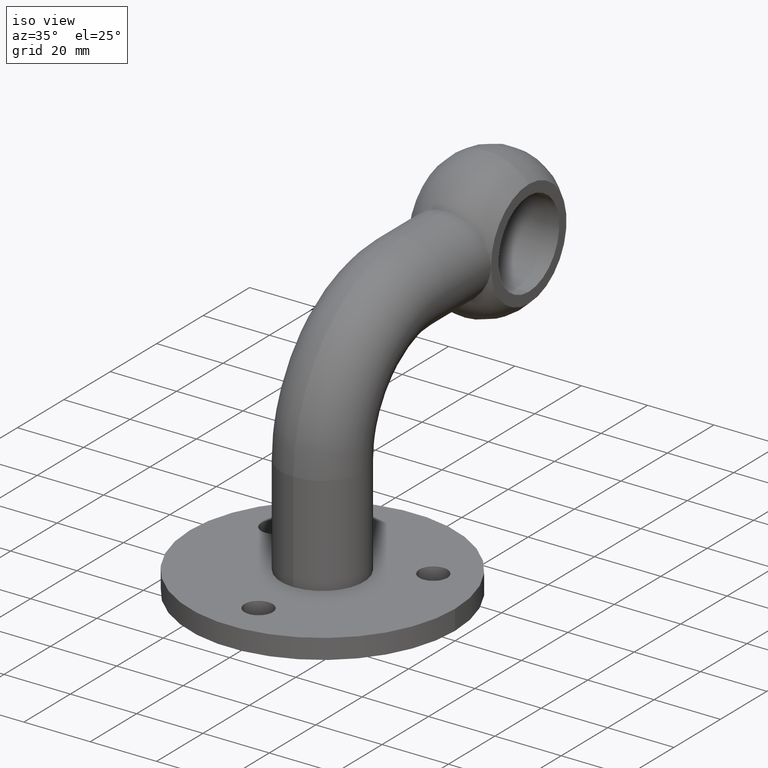
[diagram: clean part render]
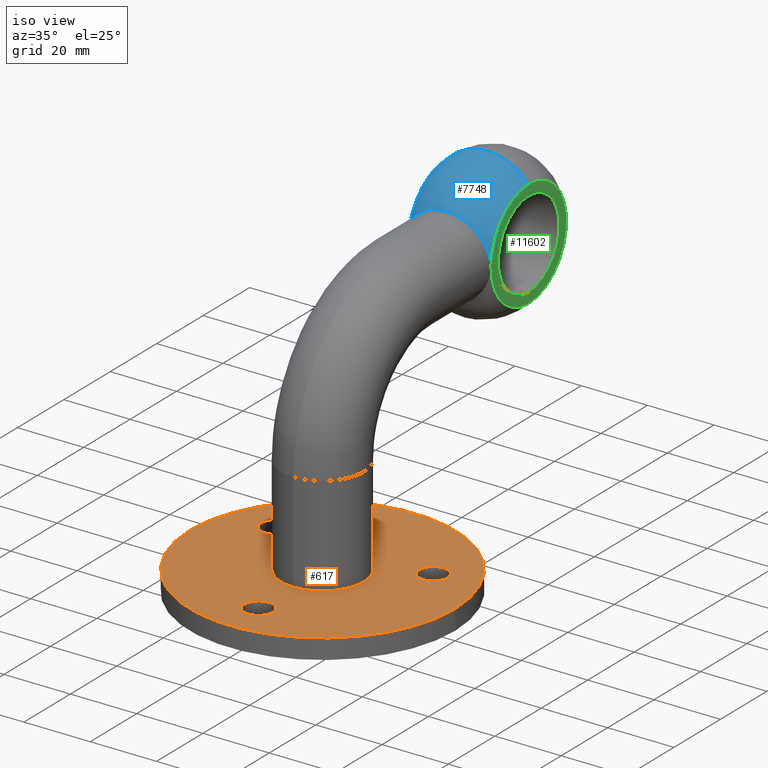
[diagram: same view with three faces highlighted in distinct colors, each labeled with its STEP entity id]
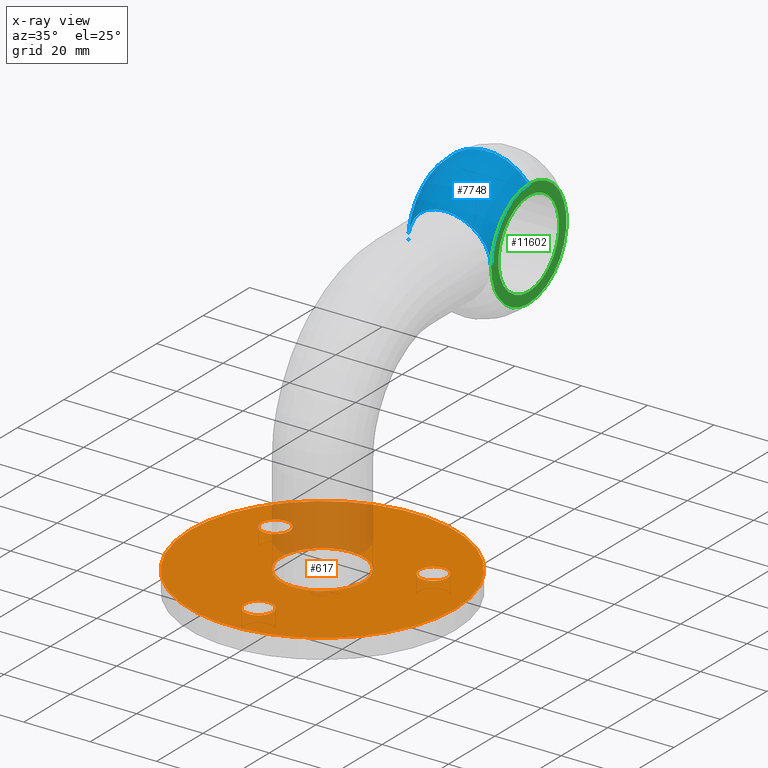
[diagram: x-ray of the same camera — body ghosted, the three highlighted faces saturated]
A machine part, iso view with three faces highlighted in distinct colors.
The next image is the same camera in x-ray (body ghosted, the three faces saturated) — at least one of them is partly hidden behind the body in this view.
Their STEP definitions:

[orange] entity #617 — the highlighted planar face has unit normal (0, 0, 1).
#9 = DIRECTION ( 'NONE',  ( 1.000000000000000000, 0.000000000000000000, 0.000000000000000000 ) ) ;
#69 = CARTESIAN_POINT ( 'NONE',  ( 19.56569860407208239, 13.74999999999994493, 6.000000000000000000 ) ) ;
#93 = DIRECTION ( 'NONE',  ( 1.000000000000000000, 0.000000000000000000, 0.000000000000000000 ) ) ;
#162 = VERTEX_POINT ( 'NONE', #11481 ) ;
#290 = AXIS2_PLACEMENT_3D ( 'NONE', #3651, #3611, #5519 ) ;
#351 = CIRCLE ( 'NONE', #8172, 4.250000000000003553 ) ;
#456 = CARTESIAN_POINT ( 'NONE',  ( 0.000000000000000000, -12.50000000000000178, 6.000000000000000000 ) ) ;
#467 = DIRECTION ( 'NONE',  ( 1.000000000000000000, 0.000000000000000000, 0.000000000000000000 ) ) ;
#617 = ADVANCED_FACE ( 'NONE', ( #10043, #8848, #2125, #5955, #4771 ), #4750, .T. ) ;
#625 = CARTESIAN_POINT ( 'NONE',  ( 0.000000000000000000, -1.299550600033665897E-15, 6.000000000000000000 ) ) ;
#748 = ORIENTED_EDGE ( 'NONE', *, *, #9659, .T. ) ;
#886 = AXIS2_PLACEMENT_3D ( 'NONE', #9925, #1451, #8003 ) ;
#1314 = CIRCLE ( 'NONE', #7053, 4.250000000000000000 ) ;
#1451 = DIRECTION ( 'NONE',  ( -0.000000000000000000, -0.000000000000000000, -1.000000000000000000 ) ) ;
#1765 = VERTEX_POINT ( 'NONE', #2072 ) ;
#2072 = CARTESIAN_POINT ( 'NONE',  ( 40.00000000000000000, 4.898587196589413026E-15, 6.000000000000000000 ) ) ;
#2125 = FACE_OUTER_BOUND ( 'NONE', #9322, .T. ) ;
#2311 = DIRECTION ( 'NONE',  ( -0.000000000000000000, -0.000000000000000000, -1.000000000000000000 ) ) ;
#2358 = CARTESIAN_POINT ( 'NONE',  ( -28.06569860407200068, 13.75000000000010836, 6.000000000000000000 ) ) ;
#2379 = DIRECTION ( 'NONE',  ( 0.000000000000000000, 0.000000000000000000, 1.000000000000000000 ) ) ;
#2402 = EDGE_CURVE ( 'NONE', #4504, #11885, #351, .T. ) ;
#2668 = AXIS2_PLACEMENT_3D ( 'NONE', #10365, #10324, #4799 ) ;
#3203 = EDGE_CURVE ( 'NONE', #10888, #5571, #11535, .T. ) ;
#3326 = CIRCLE ( 'NONE', #4764, 4.250000000000003553 ) ;
#3480 = EDGE_LOOP ( 'NONE', ( #5707, #3834 ) ) ;
#3552 = AXIS2_PLACEMENT_3D ( 'NONE', #625, #2311, #9848 ) ;
#3611 = DIRECTION ( 'NONE',  ( 0.000000000000000000, 0.000000000000000000, 1.000000000000000000 ) ) ;
#3651 = CARTESIAN_POINT ( 'NONE',  ( 23.81569860407208949, 13.74999999999994493, 6.000000000000000000 ) ) ;
#3834 = ORIENTED_EDGE ( 'NONE', *, *, #9822, .F. ) ;
#4235 = CARTESIAN_POINT ( 'NONE',  ( 0.000000000000000000, 0.000000000000000000, 6.000000000000000000 ) ) ;
#4360 = DIRECTION ( 'NONE',  ( 0.000000000000000000, 0.000000000000000000, 1.000000000000000000 ) ) ;
#4441 = CIRCLE ( 'NONE', #6182, 40.00000000000000000 ) ;
#4504 = VERTEX_POINT ( 'NONE', #8844 ) ;
#4586 = EDGE_CURVE ( 'NONE', #6002, #4860, #7852, .T. ) ;
#4750 = PLANE ( 'NONE',  #2668 ) ;
#4764 = AXIS2_PLACEMENT_3D ( 'NONE', #8441, #10384, #9 ) ;
#4771 = FACE_BOUND ( 'NONE', #8735, .T. ) ;
#4794 = ORIENTED_EDGE ( 'NONE', *, *, #9921, .F. ) ;
#4799 = DIRECTION ( 'NONE',  ( 1.000000000000000000, 0.000000000000000000, -0.000000000000000000 ) ) ;
#4860 = VERTEX_POINT ( 'NONE', #9841 ) ;
#5161 = DIRECTION ( 'NONE',  ( 1.000000000000000000, 0.000000000000000000, 0.000000000000000000 ) ) ;
#5238 = DIRECTION ( 'NONE',  ( 1.000000000000000000, 0.000000000000000000, 0.000000000000000000 ) ) ;
#5336 = ORIENTED_EDGE ( 'NONE', *, *, #2402, .F. ) ;
#5409 = EDGE_CURVE ( 'NONE', #1765, #162, #8549, .T. ) ;
#5422 = EDGE_CURVE ( 'NONE', #7838, #8622, #6510, .T. ) ;
#5519 = DIRECTION ( 'NONE',  ( 1.000000000000000000, 0.000000000000000000, 0.000000000000000000 ) ) ;
#5571 = VERTEX_POINT ( 'NONE', #8141 ) ;
#5707 = ORIENTED_EDGE ( 'NONE', *, *, #4586, .F. ) ;
#5758 = CARTESIAN_POINT ( 'NONE',  ( 0.000000000000000000, -27.50000000000000000, 6.000000000000000000 ) ) ;
#5955 = FACE_BOUND ( 'NONE', #3480, .T. ) ;
#6002 = VERTEX_POINT ( 'NONE', #7657 ) ;
#6182 = AXIS2_PLACEMENT_3D ( 'NONE', #4235, #7205, #5161 ) ;
#6205 = CIRCLE ( 'NONE', #7681, 4.250000000000007105 ) ;
#6510 = CIRCLE ( 'NONE', #886, 12.50000000000000000 ) ;
#6745 = CARTESIAN_POINT ( 'NONE',  ( 1.530808498934191916E-15, 12.50000000000000000, 6.000000000000000000 ) ) ;
#7053 = AXIS2_PLACEMENT_3D ( 'NONE', #5758, #9597, #93 ) ;
#7205 = DIRECTION ( 'NONE',  ( 0.000000000000000000, 0.000000000000000000, 1.000000000000000000 ) ) ;
#7580 = EDGE_CURVE ( 'NONE', #11885, #4504, #3326, .T. ) ;
#7657 = CARTESIAN_POINT ( 'NONE',  ( -4.250000000000000000, -27.50000000000000000, 6.000000000000000000 ) ) ;
#7681 = AXIS2_PLACEMENT_3D ( 'NONE', #10629, #8725, #7846 ) ;
#7813 = CARTESIAN_POINT ( 'NONE',  ( 0.000000000000000000, 0.000000000000000000, 6.000000000000000000 ) ) ;
#7838 = VERTEX_POINT ( 'NONE', #6745 ) ;
#7846 = DIRECTION ( 'NONE',  ( 1.000000000000000000, 0.000000000000000000, 0.000000000000000000 ) ) ;
#7852 = CIRCLE ( 'NONE', #11878, 4.250000000000000000 ) ;
#7876 = ORIENTED_EDGE ( 'NONE', *, *, #3203, .F. ) ;
#8003 = DIRECTION ( 'NONE',  ( 1.000000000000000000, 0.000000000000000000, 0.000000000000000000 ) ) ;
#8015 = EDGE_CURVE ( 'NONE', #8622, #7838, #11772, .T. ) ;
#8141 = CARTESIAN_POINT ( 'NONE',  ( 28.06569860407209660, 13.74999999999994493, 6.000000000000000000 ) ) ;
#8163 = EDGE_LOOP ( 'NONE', ( #9881, #5336 ) ) ;
#8172 = AXIS2_PLACEMENT_3D ( 'NONE', #11820, #2379, #467 ) ;
#8290 = ORIENTED_EDGE ( 'NONE', *, *, #5422, .T. ) ;
#8441 = CARTESIAN_POINT ( 'NONE',  ( -23.81569860407199712, 13.75000000000010836, 6.000000000000000000 ) ) ;
#8549 = CIRCLE ( 'NONE', #10828, 40.00000000000000000 ) ;
#8622 = VERTEX_POINT ( 'NONE', #456 ) ;
#8725 = DIRECTION ( 'NONE',  ( 0.000000000000000000, 0.000000000000000000, 1.000000000000000000 ) ) ;
#8734 = DIRECTION ( 'NONE',  ( 0.000000000000000000, 0.000000000000000000, 1.000000000000000000 ) ) ;
#8735 = EDGE_LOOP ( 'NONE', ( #7876, #4794 ) ) ;
#8844 = CARTESIAN_POINT ( 'NONE',  ( -19.56569860407199357, 13.75000000000010836, 6.000000000000000000 ) ) ;
#8848 = FACE_BOUND ( 'NONE', #8163, .T. ) ;
#8860 = ORIENTED_EDGE ( 'NONE', *, *, #5409, .T. ) ;
#8897 = ORIENTED_EDGE ( 'NONE', *, *, #8015, .T. ) ;
#9322 = EDGE_LOOP ( 'NONE', ( #748, #8860 ) ) ;
#9597 = DIRECTION ( 'NONE',  ( 0.000000000000000000, 0.000000000000000000, 1.000000000000000000 ) ) ;
#9659 = EDGE_CURVE ( 'NONE', #162, #1765, #4441, .T. ) ;
#9685 = DIRECTION ( 'NONE',  ( 1.000000000000000000, 0.000000000000000000, 0.000000000000000000 ) ) ;
#9822 = EDGE_CURVE ( 'NONE', #4860, #6002, #1314, .T. ) ;
#9841 = CARTESIAN_POINT ( 'NONE',  ( 4.250000000000000000, -27.50000000000000000, 6.000000000000000000 ) ) ;
#9848 = DIRECTION ( 'NONE',  ( 1.000000000000000000, 0.000000000000000000, 0.000000000000000000 ) ) ;
#9881 = ORIENTED_EDGE ( 'NONE', *, *, #7580, .F. ) ;
#9921 = EDGE_CURVE ( 'NONE', #5571, #10888, #6205, .T. ) ;
#9925 = CARTESIAN_POINT ( 'NONE',  ( 0.000000000000000000, -1.299550600033665897E-15, 6.000000000000000000 ) ) ;
#10043 = FACE_BOUND ( 'NONE', #11551, .T. ) ;
#10324 = DIRECTION ( 'NONE',  ( 0.000000000000000000, 0.000000000000000000, 1.000000000000000000 ) ) ;
#10365 = CARTESIAN_POINT ( 'NONE',  ( 0.000000000000000000, 0.000000000000000000, 6.000000000000000000 ) ) ;
#10384 = DIRECTION ( 'NONE',  ( 0.000000000000000000, 0.000000000000000000, 1.000000000000000000 ) ) ;
#10629 = CARTESIAN_POINT ( 'NONE',  ( 23.81569860407208949, 13.74999999999994493, 6.000000000000000000 ) ) ;
#10828 = AXIS2_PLACEMENT_3D ( 'NONE', #7813, #8734, #9685 ) ;
#10888 = VERTEX_POINT ( 'NONE', #69 ) ;
#11481 = CARTESIAN_POINT ( 'NONE',  ( -40.00000000000000000, 0.000000000000000000, 6.000000000000000000 ) ) ;
#11535 = CIRCLE ( 'NONE', #290, 4.250000000000007105 ) ;
#11551 = EDGE_LOOP ( 'NONE', ( #8897, #8290 ) ) ;
#11772 = CIRCLE ( 'NONE', #3552, 12.50000000000000000 ) ;
#11820 = CARTESIAN_POINT ( 'NONE',  ( -23.81569860407199712, 13.75000000000010836, 6.000000000000000000 ) ) ;
#11878 = AXIS2_PLACEMENT_3D ( 'NONE', #11904, #4360, #5238 ) ;
#11885 = VERTEX_POINT ( 'NONE', #2358 ) ;
#11904 = CARTESIAN_POINT ( 'NONE',  ( 0.000000000000000000, -27.50000000000000000, 6.000000000000000000 ) ) ;

[blue] entity #7748 — the highlighted toroidal blend (fillet) surface has major radius 5.5 mm and minor (blend) radius 16.5 mm.
#19 = CARTESIAN_POINT ( 'NONE',  ( -5.569167740036760961, 53.18626817477178292, 82.22128293511637764 ) ) ;
#521 = CARTESIAN_POINT ( 'NONE',  ( 4.038290656633225950, 53.04763798242769468, 82.83692695949136464 ) ) ;
#525 = ORIENTED_EDGE ( 'NONE', *, *, #11025, .T. ) ;
#602 = CARTESIAN_POINT ( 'NONE',  ( 11.69932865221011475, 54.43916014383506052, 75.42063147249605493 ) ) ;
#916 = CARTESIAN_POINT ( 'NONE',  ( -0.4116708854286305064, 52.89613300976832022, 83.49999999999997158 ) ) ;
#960 = CARTESIAN_POINT ( 'NONE',  ( -9.427817443929640717, 53.81262261937213509, 79.24798852226729196 ) ) ;
#1178 = DIRECTION ( 'NONE',  ( -1.000000000000000000, -0.000000000000000000, -0.000000000000000000 ) ) ;
#1426 = CARTESIAN_POINT ( 'NONE',  ( 8.256812862597158187, 53.58038589883630465, 80.39368421424964595 ) ) ;
#1440 = AXIS2_PLACEMENT_3D ( 'NONE', #6814, #1178, #2227 ) ;
#1468 = CARTESIAN_POINT ( 'NONE',  ( 12.07868349203978298, 54.57089833600761608, 74.24435198872095043 ) ) ;
#1536 = VERTEX_POINT ( 'NONE', #7106 ) ;
#1727 = B_SPLINE_CURVE_WITH_KNOTS ( 'NONE', 3,
 ( #10931, #5171, #11708, #10848, #1468, #5250, #602, #11750, #6099, #3286, #5212, #4281, #9023, #7092, #1426, #8019, #2392, #9896, #11790, #6178, #521, #2435, #9940, #8981, #3369, #4328 ),
 .UNSPECIFIED., .F., .F.,
 ( 4, 2, 2, 2, 2, 2, 2, 2, 2, 2, 2, 2, 4 ),
 ( 0.02955223707829052540, 0.03200843769615744488, 0.03323653800509090289, 0.03446463831402436090, 0.03692083893189127691, 0.03814893924082474880, 0.03937703954975822762, 0.04060513985869169951, 0.04183324016762517833, 0.04428944078549212904, 0.04551754109442560786, 0.04674564140335908669, 0.04920184202122603045 ),
 .UNSPECIFIED. ) ;
#1762 = CARTESIAN_POINT ( 'NONE',  ( -12.49999999999999645, 71.00000000000000000, 87.27032961426898794 ) ) ;
#1794 = AXIS2_PLACEMENT_3D ( 'NONE', #4545, #2696, #7347 ) ;
#1889 = CARTESIAN_POINT ( 'NONE',  ( -3.258145024841002435, 52.98885592492804619, 83.09561408226036860 ) ) ;
#2028 = EDGE_CURVE ( 'NONE', #1536, #5046, #5393, .T. ) ;
#2185 = EDGE_CURVE ( 'NONE', #11579, #1536, #5134, .T. ) ;
#2227 = DIRECTION ( 'NONE',  ( 0.000000000000000000, 0.000000000000000000, 1.000000000000000000 ) ) ;
#2392 = CARTESIAN_POINT ( 'NONE',  ( 7.295898406357957278, 53.41883066761170085, 81.15816490386040982 ) ) ;
#2435 = CARTESIAN_POINT ( 'NONE',  ( 3.248006825926979424, 52.99291010169355332, 83.07771016917183715 ) ) ;
#2696 = DIRECTION ( 'NONE',  ( -1.000000000000000000, -0.000000000000000000, -0.000000000000000000 ) ) ;
#2761 = CARTESIAN_POINT ( 'NONE',  ( -12.39954271610654679, 54.69060730633800915, 72.63390532799246557 ) ) ;
#3286 = CARTESIAN_POINT ( 'NONE',  ( 10.16436677175238579, 53.99227762068336745, 78.28718682777383719 ) ) ;
#3369 = CARTESIAN_POINT ( 'NONE',  ( 0.8236222377251203319, 52.89613300976832022, 83.49999999999995737 ) ) ;
#3374 = DIRECTION ( 'NONE',  ( 0.000000000000000000, -1.000000000000000000, 0.000000000000000000 ) ) ;
#3680 = FACE_OUTER_BOUND ( 'NONE', #7406, .T. ) ;
#3687 = CARTESIAN_POINT ( 'NONE',  ( -12.47999338942104863, 54.72177172641577414, 71.81735621940489978 ) ) ;
#3788 = AXIS2_PLACEMENT_3D ( 'NONE', #11938, #10001, #7312 ) ;
#3819 = CIRCLE ( 'NONE', #5033, 16.50000000000000000 ) ;
#4056 = ORIENTED_EDGE ( 'NONE', *, *, #2028, .F. ) ;
#4167 = EDGE_CURVE ( 'NONE', #7572, #11579, #1727, .T. ) ;
#4281 = CARTESIAN_POINT ( 'NONE',  ( 9.402636974401715975, 53.81159440109351522, 79.24657753481726274 ) ) ;
#4328 = CARTESIAN_POINT ( 'NONE',  ( 5.160426455947316207E-15, 52.89613300976832733, 83.49999999999998579 ) ) ;
#4545 = CARTESIAN_POINT ( 'NONE',  ( -12.49999999999999645, 71.00000000000000000, 71.00000000000000000 ) ) ;
#4571 = CARTESIAN_POINT ( 'NONE',  ( -10.61949062382361575, 54.11205071741343886, 77.60621686877988168 ) ) ;
#4609 = CARTESIAN_POINT ( 'NONE',  ( -4.043563753518467863, 53.04341198891753351, 82.85674543025331218 ) ) ;
#4657 = CARTESIAN_POINT ( 'NONE',  ( -12.49999999999999645, 54.72967038573099785, 70.99999999999998579 ) ) ;
#4736 = CARTESIAN_POINT ( 'NONE',  ( -7.300987789408280193, 53.41964345394894309, 81.15436391466568011 ) ) ;
#5033 = AXIS2_PLACEMENT_3D ( 'NONE', #9074, #3374, #6312 ) ;
#5046 = VERTEX_POINT ( 'NONE', #1762 ) ;
#5134 = B_SPLINE_CURVE_WITH_KNOTS ( 'NONE', 3,
 ( #9356, #916, #7533, #10305, #6465, #1889, #4609, #19, #7573, #4736, #11308, #5692, #11186, #960, #8367, #4571, #8293, #9226, #6631, #10185, #11143, #11228, #2761, #3687, #10268, #4657 ),
 .UNSPECIFIED., .F., .F.,
 ( 4, 2, 2, 2, 2, 2, 2, 2, 2, 2, 2, 2, 4 ),
 ( 0.04920184202122603045, 0.05042952412696964648, 0.05165720623271326944, 0.05411257044420049456, 0.05656793465568772661, 0.05779561676143135651, 0.05902329886717497948, 0.06147866307866223234, 0.06270634518440586225, 0.06393402729014949215, 0.06638939150163675196, 0.06761707360738036798, 0.06884475571312397013 ),
 .UNSPECIFIED. ) ;
#5171 = CARTESIAN_POINT ( 'NONE',  ( 12.50000000000000533, 54.72967038573082732, 71.82789375698204992 ) ) ;
#5212 = CARTESIAN_POINT ( 'NONE',  ( 9.919131295021148986, 53.93137852166991308, 78.61750992531489146 ) ) ;
#5250 = CARTESIAN_POINT ( 'NONE',  ( 11.83830851728067124, 54.48646880615054755, 75.03421196484168831 ) ) ;
#5393 = CIRCLE ( 'NONE', #1794, 16.27032961426899504 ) ;
#5692 = CARTESIAN_POINT ( 'NONE',  ( -8.260856874945678996, 53.58110952550896400, 80.39021425200010640 ) ) ;
#6099 = CARTESIAN_POINT ( 'NONE',  ( 10.84661613026732674, 54.17179787029653681, 77.26663334310863718 ) ) ;
#6178 = CARTESIAN_POINT ( 'NONE',  ( 4.424122044010462496, 53.07909159724640347, 82.69802317489495636 ) ) ;
#6312 = DIRECTION ( 'NONE',  ( 0.000000000000000000, 0.000000000000000000, -1.000000000000000000 ) ) ;
#6465 = CARTESIAN_POINT ( 'NONE',  ( -2.054822296811712690, 52.93365910670177499, 83.33673589674324944 ) ) ;
#6631 = CARTESIAN_POINT ( 'NONE',  ( -11.39105609094013083, 54.33919967103082627, 76.16322064958391991 ) ) ;
#6753 = CARTESIAN_POINT ( 'NONE',  ( 12.49999999999999822, 54.72967038573099785, 70.99999999999998579 ) ) ;
#6806 = ORIENTED_EDGE ( 'NONE', *, *, #10645, .T. ) ;
#6814 = CARTESIAN_POINT ( 'NONE',  ( 12.50000000000000000, 71.00000000000000000, 71.00000000000000000 ) ) ;
#7092 = CARTESIAN_POINT ( 'NONE',  ( 8.557322268599060422, 53.63679219681561960, 80.12066519812138665 ) ) ;
#7106 = CARTESIAN_POINT ( 'NONE',  ( -12.49999999999999645, 54.72967038573099785, 70.99999999999998579 ) ) ;
#7312 = DIRECTION ( 'NONE',  ( 0.000000000000000000, 0.000000000000000000, 1.000000000000000000 ) ) ;
#7316 = CARTESIAN_POINT ( 'NONE',  ( 12.50000000000000000, 71.00000000000000000, 87.27032961426898794 ) ) ;
#7347 = DIRECTION ( 'NONE',  ( 0.000000000000000000, 0.000000000000000000, 1.000000000000000000 ) ) ;
#7406 = EDGE_LOOP ( 'NONE', ( #525, #6806, #4056, #8939, #8023 ) ) ;
#7533 = CARTESIAN_POINT ( 'NONE',  ( -0.8279709484769888217, 52.90088413486919450, 83.47937022619321112 ) ) ;
#7572 = VERTEX_POINT ( 'NONE', #6753 ) ;
#7573 = CARTESIAN_POINT ( 'NONE',  ( -6.287338353801196433, 53.27243965703405593, 81.83427400775131844 ) ) ;
#7748 = ADVANCED_FACE ( 'NONE', ( #3680 ), #8302, .T. ) ;
#8019 = CARTESIAN_POINT ( 'NONE',  ( 7.627064125617726731, 53.47154108269296557, 80.91181893441903128 ) ) ;
#8023 = ORIENTED_EDGE ( 'NONE', *, *, #4167, .F. ) ;
#8204 = CARTESIAN_POINT ( 'NONE',  ( 5.160426455947316207E-15, 52.89613300976832733, 83.49999999999998579 ) ) ;
#8293 = CARTESIAN_POINT ( 'NONE',  ( -10.83129780512051354, 54.17138732630208864, 77.25303277990722961 ) ) ;
#8302 = TOROIDAL_SURFACE ( 'NONE', #3788, 5.499999999999991118, 16.49999999999999645 ) ;
#8367 = CARTESIAN_POINT ( 'NONE',  ( -9.941067943491749048, 53.93348843021156824, 78.62154169772746570 ) ) ;
#8939 = ORIENTED_EDGE ( 'NONE', *, *, #2185, .F. ) ;
#8981 = CARTESIAN_POINT ( 'NONE',  ( 1.637984379901755272, 52.91473740157285732, 83.41938406435430409 ) ) ;
#9023 = CARTESIAN_POINT ( 'NONE',  ( 9.130234525405619195, 53.75239381364620073, 79.54711153407835411 ) ) ;
#9074 = CARTESIAN_POINT ( 'NONE',  ( 0.000000000000000000, 71.00000000000000000, 76.49999999999998579 ) ) ;
#9226 = CARTESIAN_POINT ( 'NONE',  ( -11.21705369305393241, 54.28498237513294100, 76.53128715010780070 ) ) ;
#9242 = CIRCLE ( 'NONE', #1440, 16.27032961426899504 ) ;
#9356 = CARTESIAN_POINT ( 'NONE',  ( 5.160426455947316207E-15, 52.89613300976832733, 83.49999999999998579 ) ) ;
#9896 = CARTESIAN_POINT ( 'NONE',  ( 6.272808136327870265, 53.27047965439749078, 81.84323149086515059 ) ) ;
#9940 = CARTESIAN_POINT ( 'NONE',  ( 2.845779079326886674, 52.96984350745155012, 83.17867253740529065 ) ) ;
#10001 = DIRECTION ( 'NONE',  ( -1.000000000000000000, -0.000000000000000000, -0.000000000000000000 ) ) ;
#10185 = CARTESIAN_POINT ( 'NONE',  ( -11.85783900575105143, 54.49061346103233916, 75.03753383721129921 ) ) ;
#10268 = CARTESIAN_POINT ( 'NONE',  ( -12.50000000000000355, 54.72967038573101917, 71.40881212014738821 ) ) ;
#10305 = CARTESIAN_POINT ( 'NONE',  ( -1.649058274001145463, 52.91967575820146408, 83.39761363903828340 ) ) ;
#10645 = EDGE_CURVE ( 'NONE', #11530, #5046, #3819, .T. ) ;
#10848 = CARTESIAN_POINT ( 'NONE',  ( 12.17850852670432715, 54.60743671840381097, 73.84627663953837384 ) ) ;
#10931 = CARTESIAN_POINT ( 'NONE',  ( 12.49999999999999822, 54.72967038573099785, 70.99999999999998579 ) ) ;
#11025 = EDGE_CURVE ( 'NONE', #7572, #11530, #9242, .T. ) ;
#11143 = CARTESIAN_POINT ( 'NONE',  ( -12.09599611840674882, 54.57666213422666601, 74.25865618702184179 ) ) ;
#11186 = CARTESIAN_POINT ( 'NONE',  ( -8.565521981743275504, 53.63835747421518363, 80.11304544513807002 ) ) ;
#11228 = CARTESIAN_POINT ( 'NONE',  ( -12.33867015634170805, 54.66718552760769256, 73.04394455243635775 ) ) ;
#11308 = CARTESIAN_POINT ( 'NONE',  ( -7.628190330178895806, 53.47171126920440543, 80.91103386601862724 ) ) ;
#11530 = VERTEX_POINT ( 'NONE', #7316 ) ;
#11579 = VERTEX_POINT ( 'NONE', #8204 ) ;
#11708 = CARTESIAN_POINT ( 'NONE',  ( 12.41857490855310431, 54.69700118600352567, 72.64269285498664885 ) ) ;
#11750 = CARTESIAN_POINT ( 'NONE',  ( 11.22985818339574138, 54.28698437130981347, 76.55025938970506161 ) ) ;
#11790 = CARTESIAN_POINT ( 'NONE',  ( 5.554710189816634447, 53.18482638433819432, 82.22771583848934540 ) ) ;
#11938 = CARTESIAN_POINT ( 'NONE',  ( 0.000000000000000000, 71.00000000000000000, 71.00000000000000000 ) ) ;

[green] entity #11602 — the highlighted planar face has unit normal (1, 0, 0).
#232 = DIRECTION ( 'NONE',  ( 0.000000000000000000, 0.000000000000000000, 1.000000000000000000 ) ) ;
#277 = AXIS2_PLACEMENT_3D ( 'NONE', #3950, #3861, #232 ) ;
#439 = DIRECTION ( 'NONE',  ( -1.000000000000000000, -0.000000000000000000, -0.000000000000000000 ) ) ;
#991 = FACE_OUTER_BOUND ( 'NONE', #10375, .T. ) ;
#1160 = EDGE_CURVE ( 'NONE', #8694, #11442, #4929, .T. ) ;
#1178 = DIRECTION ( 'NONE',  ( -1.000000000000000000, -0.000000000000000000, -0.000000000000000000 ) ) ;
#1301 = CARTESIAN_POINT ( 'NONE',  ( 12.50000000000000000, 71.00000000000000000, 54.72967038573099785 ) ) ;
#1431 = DIRECTION ( 'NONE',  ( 0.000000000000000000, 0.000000000000000000, 1.000000000000000000 ) ) ;
#1440 = AXIS2_PLACEMENT_3D ( 'NONE', #6814, #1178, #2227 ) ;
#1665 = PLANE ( 'NONE',  #10901 ) ;
#2063 = DIRECTION ( 'NONE',  ( -1.000000000000000000, -0.000000000000000000, -0.000000000000000000 ) ) ;
#2227 = DIRECTION ( 'NONE',  ( 0.000000000000000000, 0.000000000000000000, 1.000000000000000000 ) ) ;
#2463 = CARTESIAN_POINT ( 'NONE',  ( 12.50000000000000000, 71.00000000000000000, 57.89999999999999147 ) ) ;
#2664 = ORIENTED_EDGE ( 'NONE', *, *, #11025, .F. ) ;
#3009 = DIRECTION ( 'NONE',  ( 0.000000000000000000, 0.000000000000000000, 1.000000000000000000 ) ) ;
#3110 = EDGE_LOOP ( 'NONE', ( #6105, #9920 ) ) ;
#3861 = DIRECTION ( 'NONE',  ( -1.000000000000000000, -0.000000000000000000, -0.000000000000000000 ) ) ;
#3950 = CARTESIAN_POINT ( 'NONE',  ( 12.50000000000000000, 71.00000000000000000, 71.00000000000000000 ) ) ;
#4516 = CARTESIAN_POINT ( 'NONE',  ( 12.50000000000000000, 84.09999999999999432, 71.00000000000000000 ) ) ;
#4734 = EDGE_CURVE ( 'NONE', #11442, #8694, #6235, .T. ) ;
#4775 = EDGE_CURVE ( 'NONE', #5874, #7572, #6532, .T. ) ;
#4929 = CIRCLE ( 'NONE', #5433, 13.10000000000000142 ) ;
#5328 = AXIS2_PLACEMENT_3D ( 'NONE', #7141, #439, #1431 ) ;
#5433 = AXIS2_PLACEMENT_3D ( 'NONE', #5728, #11182, #6540 ) ;
#5468 = DIRECTION ( 'NONE',  ( 0.000000000000000000, 0.000000000000000000, -1.000000000000000000 ) ) ;
#5728 = CARTESIAN_POINT ( 'NONE',  ( 12.50000000000000000, 71.00000000000000000, 71.00000000000000000 ) ) ;
#5874 = VERTEX_POINT ( 'NONE', #1301 ) ;
#5917 = ORIENTED_EDGE ( 'NONE', *, *, #4775, .F. ) ;
#5983 = ORIENTED_EDGE ( 'NONE', *, *, #8998, .F. ) ;
#6105 = ORIENTED_EDGE ( 'NONE', *, *, #1160, .T. ) ;
#6235 = CIRCLE ( 'NONE', #8082, 13.10000000000000142 ) ;
#6532 = CIRCLE ( 'NONE', #277, 16.27032961426899504 ) ;
#6540 = DIRECTION ( 'NONE',  ( 0.000000000000000000, 0.000000000000000000, 1.000000000000000000 ) ) ;
#6753 = CARTESIAN_POINT ( 'NONE',  ( 12.49999999999999822, 54.72967038573099785, 70.99999999999998579 ) ) ;
#6814 = CARTESIAN_POINT ( 'NONE',  ( 12.50000000000000000, 71.00000000000000000, 71.00000000000000000 ) ) ;
#6889 = CARTESIAN_POINT ( 'NONE',  ( 12.50000000000000000, 71.00000000000000000, 71.00000000000000000 ) ) ;
#7141 = CARTESIAN_POINT ( 'NONE',  ( 12.50000000000000000, 71.00000000000000000, 71.00000000000000000 ) ) ;
#7270 = CARTESIAN_POINT ( 'NONE',  ( 12.50000000000000000, 71.00000000000000000, 84.09999999999999432 ) ) ;
#7316 = CARTESIAN_POINT ( 'NONE',  ( 12.50000000000000000, 71.00000000000000000, 87.27032961426898794 ) ) ;
#7572 = VERTEX_POINT ( 'NONE', #6753 ) ;
#7646 = FACE_BOUND ( 'NONE', #3110, .T. ) ;
#8082 = AXIS2_PLACEMENT_3D ( 'NONE', #6889, #2063, #3009 ) ;
#8694 = VERTEX_POINT ( 'NONE', #7270 ) ;
#8998 = EDGE_CURVE ( 'NONE', #11530, #5874, #11356, .T. ) ;
#9242 = CIRCLE ( 'NONE', #1440, 16.27032961426899504 ) ;
#9920 = ORIENTED_EDGE ( 'NONE', *, *, #4734, .T. ) ;
#10375 = EDGE_LOOP ( 'NONE', ( #2664, #5917, #5983 ) ) ;
#10901 = AXIS2_PLACEMENT_3D ( 'NONE', #4516, #11086, #5468 ) ;
#11025 = EDGE_CURVE ( 'NONE', #7572, #11530, #9242, .T. ) ;
#11086 = DIRECTION ( 'NONE',  ( 1.000000000000000000, 0.000000000000000000, 0.000000000000000000 ) ) ;
#11182 = DIRECTION ( 'NONE',  ( -1.000000000000000000, -0.000000000000000000, -0.000000000000000000 ) ) ;
#11356 = CIRCLE ( 'NONE', #5328, 16.27032961426899504 ) ;
#11442 = VERTEX_POINT ( 'NONE', #2463 ) ;
#11530 = VERTEX_POINT ( 'NONE', #7316 ) ;
#11602 = ADVANCED_FACE ( 'NONE', ( #7646, #991 ), #1665, .T. ) ;